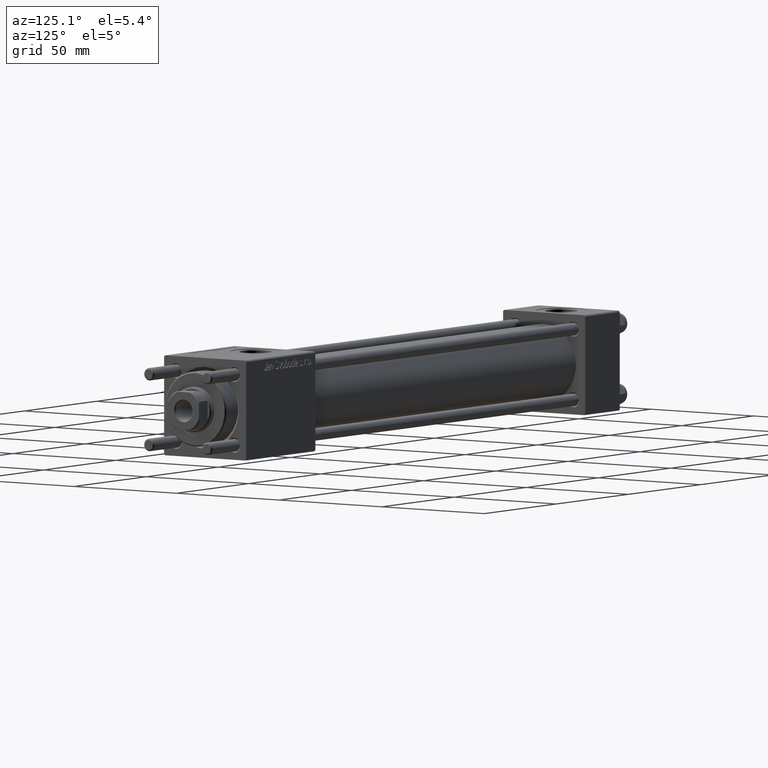
[diagram: clean part render]
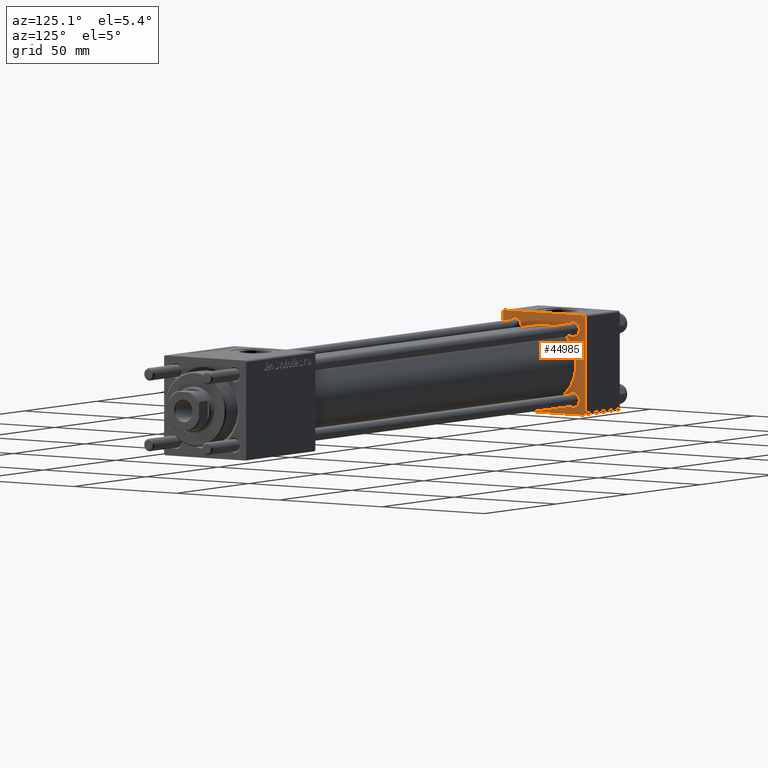
[diagram: same view with one face highlighted and labeled with its STEP entity id]
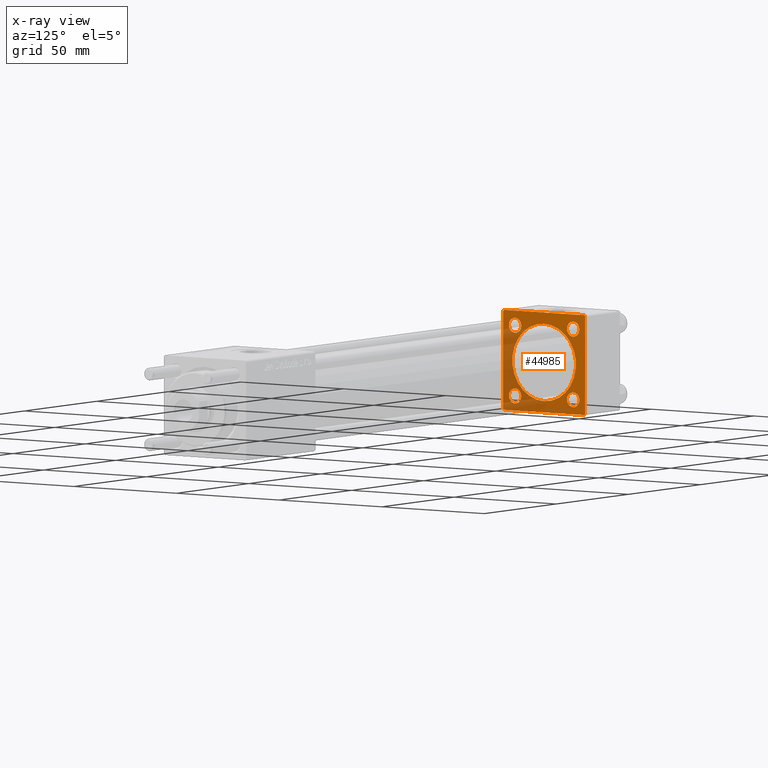
[diagram: x-ray of the same camera — body ghosted, the highlighted face saturated]
A machine part, auxiliary view. The second image highlights one B-rep face of the part: STEP entity #44985.
The next image is the same camera in x-ray: the body ghosted, the highlighted face saturated — about 36% of this face is hidden behind the body in this view.
In plain terms, the highlighted planar face has unit normal (-1, 0, 0).
Its self-contained STEP definition (entity closure, byte-faithful):
#5 = ORIENTED_EDGE ( 'NONE', *, *, #9609, .T. ) ;
#121 = DIRECTION ( 'NONE',  ( -1.000000000000000000, -0.000000000000000000, -0.000000000000000000 ) ) ;
#617 = CARTESIAN_POINT ( 'NONE',  ( 24.00000000000000000, -20.00000000000000355, 19.49999999999998224 ) ) ;
#674 = CARTESIAN_POINT ( 'NONE',  ( 24.00000000000000000, 20.00000000000000000, 20.00000000000000000 ) ) ;
#691 = CARTESIAN_POINT ( 'NONE',  ( 24.00000000000000000, -19.50000000000000711, -20.00000000000000000 ) ) ;
#899 = DIRECTION ( 'NONE',  ( 0.000000000000000000, 0.000000000000000000, 1.000000000000000000 ) ) ;
#1248 = EDGE_CURVE ( 'NONE', #10584, #48640, #10385, .T. ) ;
#1302 = DIRECTION ( 'NONE',  ( 0.000000000000000000, -0.7071067811865425767, 0.7071067811865525687 ) ) ;
#1329 = LINE ( 'NONE', #26858, #21893 ) ;
#1805 = CARTESIAN_POINT ( 'NONE',  ( 24.00000000000000000, 20.00000000000000000, -19.50000000000002132 ) ) ;
#1895 = VECTOR ( 'NONE', #25947, 1000.000000000000000 ) ;
#3411 = AXIS2_PLACEMENT_3D ( 'NONE', #8504, #30019, #3631 ) ;
#3631 = DIRECTION ( 'NONE',  ( 0.000000000000000000, 0.000000000000000000, 1.000000000000000000 ) ) ;
#3973 = AXIS2_PLACEMENT_3D ( 'NONE', #37961, #15888, #46547 ) ;
#4314 = VECTOR ( 'NONE', #1302, 999.9999999999998863 ) ;
#4822 = AXIS2_PLACEMENT_3D ( 'NONE', #14368, #18663, #36181 ) ;
#5314 = CARTESIAN_POINT ( 'NONE',  ( 24.00000000000000000, 19.50000000000000000, 20.00000000000000000 ) ) ;
#6571 = EDGE_CURVE ( 'NONE', #7144, #26000, #27979, .T. ) ;
#6875 = ORIENTED_EDGE ( 'NONE', *, *, #7147, .T. ) ;
#7144 = VERTEX_POINT ( 'NONE', #25425 ) ;
#7147 = EDGE_CURVE ( 'NONE', #56685, #56482, #22644, .T. ) ;
#7607 = CARTESIAN_POINT ( 'NONE',  ( 24.00000000000000000, 14.14999999999999858, -14.15000000000000036 ) ) ;
#7721 = DIRECTION ( 'NONE',  ( 0.000000000000000000, 0.000000000000000000, 1.000000000000000000 ) ) ;
#7932 = VECTOR ( 'NONE', #18098, 1000.000000000000114 ) ;
#8098 = CARTESIAN_POINT ( 'NONE',  ( 24.00000000000000000, 20.00000000000000000, -19.50000000000002132 ) ) ;
#8209 = DIRECTION ( 'NONE',  ( -0.000000000000000000, 0.000000000000000000, 1.000000000000000000 ) ) ;
#8384 = EDGE_CURVE ( 'NONE', #36350, #35320, #22125, .T. ) ;
#8456 = CARTESIAN_POINT ( 'NONE',  ( 24.00000000000000000, 20.00000000000000000, -20.00000000000000711 ) ) ;
#8491 = EDGE_CURVE ( 'NONE', #42929, #28971, #50119, .T. ) ;
#8504 = CARTESIAN_POINT ( 'NONE',  ( 24.00000000000000000, -14.14999999999999503, -14.15000000000000391 ) ) ;
#8572 = DIRECTION ( 'NONE',  ( -1.000000000000000000, -0.000000000000000000, -0.000000000000000000 ) ) ;
#8770 = PLANE ( 'NONE',  #49687 ) ;
#9609 = EDGE_CURVE ( 'NONE', #10814, #18924, #41937, .T. ) ;
#10385 = LINE ( 'NONE', #617, #7932 ) ;
#10584 = VERTEX_POINT ( 'NONE', #33049 ) ;
#10814 = VERTEX_POINT ( 'NONE', #41292 ) ;
#11018 = ORIENTED_EDGE ( 'NONE', *, *, #53350, .F. ) ;
#11141 = DIRECTION ( 'NONE',  ( -1.000000000000000000, -0.000000000000000000, -0.000000000000000000 ) ) ;
#11856 = EDGE_CURVE ( 'NONE', #25832, #38862, #49345, .T. ) ;
#11915 = LINE ( 'NONE', #8456, #1895 ) ;
#11916 = DIRECTION ( 'NONE',  ( -1.000000000000000000, -0.000000000000000000, -0.000000000000000000 ) ) ;
#12236 = EDGE_CURVE ( 'NONE', #38862, #25832, #54814, .T. ) ;
#12904 = CIRCLE ( 'NONE', #19288, 2.999999999999948930 ) ;
#13351 = CARTESIAN_POINT ( 'NONE',  ( 24.00000000000000000, 0.000000000000000000, 0.000000000000000000 ) ) ;
#14368 = CARTESIAN_POINT ( 'NONE',  ( 23.99999999999999289, -2.602085213965210642E-15, 0.000000000000000000 ) ) ;
#14373 = CARTESIAN_POINT ( 'NONE',  ( 23.99999999999999289, -2.602085213965210642E-15, 0.000000000000000000 ) ) ;
#14940 = CARTESIAN_POINT ( 'NONE',  ( 24.00000000000000000, 14.14999999999999858, -11.15000000000005365 ) ) ;
#15699 = DIRECTION ( 'NONE',  ( 0.000000000000000000, 0.7071067811865401342, -0.7071067811865549002 ) ) ;
#15818 = CIRCLE ( 'NONE', #4822, 15.50000000000000000 ) ;
#15888 = DIRECTION ( 'NONE',  ( -1.000000000000000000, -0.000000000000000000, -0.000000000000000000 ) ) ;
#16244 = LINE ( 'NONE', #38617, #20499 ) ;
#16250 = ORIENTED_EDGE ( 'NONE', *, *, #11856, .T. ) ;
#16477 = CARTESIAN_POINT ( 'NONE',  ( 24.00000000000000000, 19.50000000000000711, -20.00000000000000711 ) ) ;
#17026 = DIRECTION ( 'NONE',  ( 0.000000000000000000, 0.000000000000000000, 1.000000000000000000 ) ) ;
#18089 = DIRECTION ( 'NONE',  ( 1.000000000000000000, 0.000000000000000000, 0.000000000000000000 ) ) ;
#18098 = DIRECTION ( 'NONE',  ( -0.000000000000000000, -0.7071067811865500152, -0.7071067811865451302 ) ) ;
#18156 = DIRECTION ( 'NONE',  ( 0.000000000000000000, -1.000000000000000000, -2.602085213965210149E-16 ) ) ;
#18663 = DIRECTION ( 'NONE',  ( 1.000000000000000000, 0.000000000000000000, 0.000000000000000000 ) ) ;
#18807 = DIRECTION ( 'NONE',  ( 0.000000000000000000, 0.000000000000000000, -1.000000000000000000 ) ) ;
#18924 = VERTEX_POINT ( 'NONE', #23040 ) ;
#19165 = DIRECTION ( 'NONE',  ( 0.000000000000000000, 0.000000000000000000, 1.000000000000000000 ) ) ;
#19288 = AXIS2_PLACEMENT_3D ( 'NONE', #36468, #45619, #899 ) ;
#19570 = CARTESIAN_POINT ( 'NONE',  ( 24.00000000000000000, 14.14999999999999858, -17.14999999999994884 ) ) ;
#20035 = AXIS2_PLACEMENT_3D ( 'NONE', #41258, #11141, #19165 ) ;
#20162 = VERTEX_POINT ( 'NONE', #29564 ) ;
#20499 = VECTOR ( 'NONE', #15699, 1000.000000000000000 ) ;
#20840 = EDGE_LOOP ( 'NONE', ( #24312, #54498 ) ) ;
#21356 = EDGE_LOOP ( 'NONE', ( #42988, #32015 ) ) ;
#21680 = EDGE_LOOP ( 'NONE', ( #22375, #32085, #11018, #47241, #31274, #36343, #39650, #31028 ) ) ;
#21893 = VECTOR ( 'NONE', #18807, 1000.000000000000000 ) ;
#22125 = LINE ( 'NONE', #8098, #27252 ) ;
#22375 = ORIENTED_EDGE ( 'NONE', *, *, #56556, .F. ) ;
#22461 = LINE ( 'NONE', #674, #35716 ) ;
#22644 = CIRCLE ( 'NONE', #3411, 3.000000000000004441 ) ;
#23040 = CARTESIAN_POINT ( 'NONE',  ( 24.00000000000000000, 14.14999999999999858, 11.15000000000005365 ) ) ;
#24312 = ORIENTED_EDGE ( 'NONE', *, *, #8491, .F. ) ;
#24871 = VERTEX_POINT ( 'NONE', #26189 ) ;
#24916 = CARTESIAN_POINT ( 'NONE',  ( 24.00000000000000000, 14.14999999999999858, 14.15000000000000036 ) ) ;
#25208 = CARTESIAN_POINT ( 'NONE',  ( 24.00000000000000000, -20.00000000000000355, 19.49999999999998224 ) ) ;
#25405 = AXIS2_PLACEMENT_3D ( 'NONE', #14373, #18089, #35902 ) ;
#25425 = CARTESIAN_POINT ( 'NONE',  ( 24.00000000000000000, 20.00000000000000000, 19.49999999999999289 ) ) ;
#25832 = VERTEX_POINT ( 'NONE', #19570 ) ;
#25876 = DIRECTION ( 'NONE',  ( -0.000000000000000000, 0.7071067811865524577, 0.7071067811865426878 ) ) ;
#25947 = DIRECTION ( 'NONE',  ( 0.000000000000000000, -1.000000000000000000, 1.734723475976807094E-16 ) ) ;
#26000 = VERTEX_POINT ( 'NONE', #43613 ) ;
#26189 = CARTESIAN_POINT ( 'NONE',  ( 24.00000000000000000, -14.14999999999999503, 17.15000000000000924 ) ) ;
#26258 = DIRECTION ( 'NONE',  ( -1.000000000000000000, 0.000000000000000000, -0.000000000000000000 ) ) ;
#26858 = CARTESIAN_POINT ( 'NONE',  ( 24.00000000000000000, 20.00000000000000000, 20.00000000000000000 ) ) ;
#26940 = AXIS2_PLACEMENT_3D ( 'NONE', #47716, #121, #17026 ) ;
#27252 = VECTOR ( 'NONE', #25876, 1000.000000000000000 ) ;
#27971 = CARTESIAN_POINT ( 'NONE',  ( 24.00000000000000000, -20.00000000000000000, -19.49999999999999645 ) ) ;
#27979 = LINE ( 'NONE', #5314, #4314 ) ;
#28296 = CARTESIAN_POINT ( 'NONE',  ( 24.00000000000000000, -14.14999999999999503, -11.15000000000000036 ) ) ;
#28716 = CIRCLE ( 'NONE', #3973, 3.000000000000004441 ) ;
#28971 = VERTEX_POINT ( 'NONE', #30644 ) ;
#29463 = ORIENTED_EDGE ( 'NONE', *, *, #12236, .T. ) ;
#29564 = CARTESIAN_POINT ( 'NONE',  ( 24.00000000000000000, -14.14999999999999503, 11.15000000000000036 ) ) ;
#30007 = FACE_BOUND ( 'NONE', #34608, .T. ) ;
#30019 = DIRECTION ( 'NONE',  ( -1.000000000000000000, -0.000000000000000000, -0.000000000000000000 ) ) ;
#30644 = CARTESIAN_POINT ( 'NONE',  ( 23.99999999999999289, -7.038826752868131828E-16, -15.50000000000000000 ) ) ;
#30817 = VERTEX_POINT ( 'NONE', #691 ) ;
#30846 = FACE_BOUND ( 'NONE', #20840, .T. ) ;
#31028 = ORIENTED_EDGE ( 'NONE', *, *, #48880, .T. ) ;
#31103 = CARTESIAN_POINT ( 'NONE',  ( 24.00000000000000000, -14.14999999999999503, -17.15000000000000924 ) ) ;
#31257 = CARTESIAN_POINT ( 'NONE',  ( 23.99999999999999289, -2.602085213965210642E-15, 15.50000000000000000 ) ) ;
#31274 = ORIENTED_EDGE ( 'NONE', *, *, #55917, .T. ) ;
#32015 = ORIENTED_EDGE ( 'NONE', *, *, #50236, .T. ) ;
#32085 = ORIENTED_EDGE ( 'NONE', *, *, #8384, .T. ) ;
#33049 = CARTESIAN_POINT ( 'NONE',  ( 24.00000000000000000, -19.49999999999999289, 19.99999999999998934 ) ) ;
#34253 = EDGE_CURVE ( 'NONE', #18924, #10814, #12904, .T. ) ;
#34281 = DIRECTION ( 'NONE',  ( 0.000000000000000000, 0.000000000000000000, 1.000000000000000000 ) ) ;
#34608 = EDGE_LOOP ( 'NONE', ( #6875, #44164 ) ) ;
#35021 = AXIS2_PLACEMENT_3D ( 'NONE', #51288, #8572, #7721 ) ;
#35320 = VERTEX_POINT ( 'NONE', #1805 ) ;
#35716 = VECTOR ( 'NONE', #18156, 1000.000000000000000 ) ;
#35902 = DIRECTION ( 'NONE',  ( 0.000000000000000000, 0.000000000000000000, 1.000000000000000000 ) ) ;
#36181 = DIRECTION ( 'NONE',  ( 0.000000000000000000, 0.000000000000000000, 1.000000000000000000 ) ) ;
#36343 = ORIENTED_EDGE ( 'NONE', *, *, #1248, .T. ) ;
#36350 = VERTEX_POINT ( 'NONE', #16477 ) ;
#36468 = CARTESIAN_POINT ( 'NONE',  ( 24.00000000000000000, 14.14999999999999858, 14.15000000000000036 ) ) ;
#37933 = EDGE_CURVE ( 'NONE', #20162, #24871, #52376, .T. ) ;
#37961 = CARTESIAN_POINT ( 'NONE',  ( 24.00000000000000000, -14.14999999999999503, -14.15000000000000391 ) ) ;
#38384 = DIRECTION ( 'NONE',  ( -1.000000000000000000, -0.000000000000000000, -0.000000000000000000 ) ) ;
#38617 = CARTESIAN_POINT ( 'NONE',  ( 24.00000000000000000, -19.50000000000000711, -20.00000000000000000 ) ) ;
#38862 = VERTEX_POINT ( 'NONE', #14940 ) ;
#39650 = ORIENTED_EDGE ( 'NONE', *, *, #51847, .T. ) ;
#39777 = EDGE_CURVE ( 'NONE', #28971, #42929, #15818, .T. ) ;
#41258 = CARTESIAN_POINT ( 'NONE',  ( 24.00000000000000000, 14.14999999999999858, -14.15000000000000036 ) ) ;
#41292 = CARTESIAN_POINT ( 'NONE',  ( 24.00000000000000000, 14.14999999999999858, 17.14999999999994884 ) ) ;
#41937 = CIRCLE ( 'NONE', #45629, 2.999999999999948930 ) ;
#42929 = VERTEX_POINT ( 'NONE', #31257 ) ;
#42988 = ORIENTED_EDGE ( 'NONE', *, *, #37933, .T. ) ;
#43235 = EDGE_CURVE ( 'NONE', #56482, #56685, #28716, .T. ) ;
#43426 = CIRCLE ( 'NONE', #26940, 3.000000000000004441 ) ;
#43465 = FACE_BOUND ( 'NONE', #55056, .T. ) ;
#43613 = CARTESIAN_POINT ( 'NONE',  ( 24.00000000000000000, 19.50000000000000000, 20.00000000000000000 ) ) ;
#44164 = ORIENTED_EDGE ( 'NONE', *, *, #43235, .T. ) ;
#44985 = ADVANCED_FACE ( 'NONE', ( #30007, #43465, #52325, #48041, #30846, #51762 ), #8770, .F. ) ;
#45619 = DIRECTION ( 'NONE',  ( -1.000000000000000000, -0.000000000000000000, -0.000000000000000000 ) ) ;
#45629 = AXIS2_PLACEMENT_3D ( 'NONE', #24916, #38384, #46701 ) ;
#45988 = VERTEX_POINT ( 'NONE', #27971 ) ;
#46547 = DIRECTION ( 'NONE',  ( 0.000000000000000000, 0.000000000000000000, 1.000000000000000000 ) ) ;
#46701 = DIRECTION ( 'NONE',  ( 0.000000000000000000, 0.000000000000000000, 1.000000000000000000 ) ) ;
#47241 = ORIENTED_EDGE ( 'NONE', *, *, #6571, .T. ) ;
#47244 = VECTOR ( 'NONE', #50942, 1000.000000000000000 ) ;
#47716 = CARTESIAN_POINT ( 'NONE',  ( 24.00000000000000000, -14.14999999999999503, 14.15000000000000391 ) ) ;
#48041 = FACE_BOUND ( 'NONE', #56034, .T. ) ;
#48640 = VERTEX_POINT ( 'NONE', #25208 ) ;
#48880 = EDGE_CURVE ( 'NONE', #45988, #30817, #16244, .T. ) ;
#49345 = CIRCLE ( 'NONE', #20035, 2.999999999999948930 ) ;
#49687 = AXIS2_PLACEMENT_3D ( 'NONE', #13351, #26258, #8209 ) ;
#50119 = CIRCLE ( 'NONE', #25405, 15.50000000000000000 ) ;
#50236 = EDGE_CURVE ( 'NONE', #24871, #20162, #43426, .T. ) ;
#50942 = DIRECTION ( 'NONE',  ( 0.000000000000000000, 8.673617379884036705E-17, -1.000000000000000000 ) ) ;
#51288 = CARTESIAN_POINT ( 'NONE',  ( 24.00000000000000000, -14.14999999999999503, 14.15000000000000391 ) ) ;
#51405 = ORIENTED_EDGE ( 'NONE', *, *, #34253, .T. ) ;
#51762 = FACE_OUTER_BOUND ( 'NONE', #21680, .T. ) ;
#51847 = EDGE_CURVE ( 'NONE', #48640, #45988, #56100, .T. ) ;
#52325 = FACE_BOUND ( 'NONE', #21356, .T. ) ;
#52376 = CIRCLE ( 'NONE', #35021, 3.000000000000004441 ) ;
#53350 = EDGE_CURVE ( 'NONE', #7144, #35320, #1329, .T. ) ;
#54498 = ORIENTED_EDGE ( 'NONE', *, *, #39777, .F. ) ;
#54814 = CIRCLE ( 'NONE', #56661, 2.999999999999948930 ) ;
#55056 = EDGE_LOOP ( 'NONE', ( #16250, #29463 ) ) ;
#55254 = CARTESIAN_POINT ( 'NONE',  ( 24.00000000000000000, -20.00000000000000355, 19.99999999999998934 ) ) ;
#55917 = EDGE_CURVE ( 'NONE', #26000, #10584, #22461, .T. ) ;
#56034 = EDGE_LOOP ( 'NONE', ( #51405, #5 ) ) ;
#56100 = LINE ( 'NONE', #55254, #47244 ) ;
#56482 = VERTEX_POINT ( 'NONE', #28296 ) ;
#56556 = EDGE_CURVE ( 'NONE', #36350, #30817, #11915, .T. ) ;
#56661 = AXIS2_PLACEMENT_3D ( 'NONE', #7607, #11916, #34281 ) ;
#56685 = VERTEX_POINT ( 'NONE', #31103 ) ;